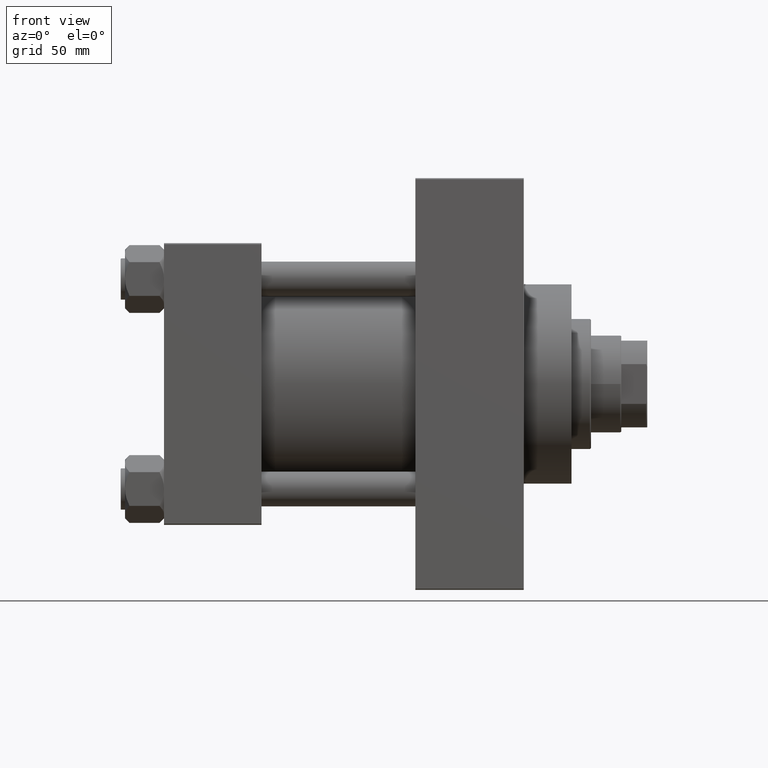
[diagram: clean part render]
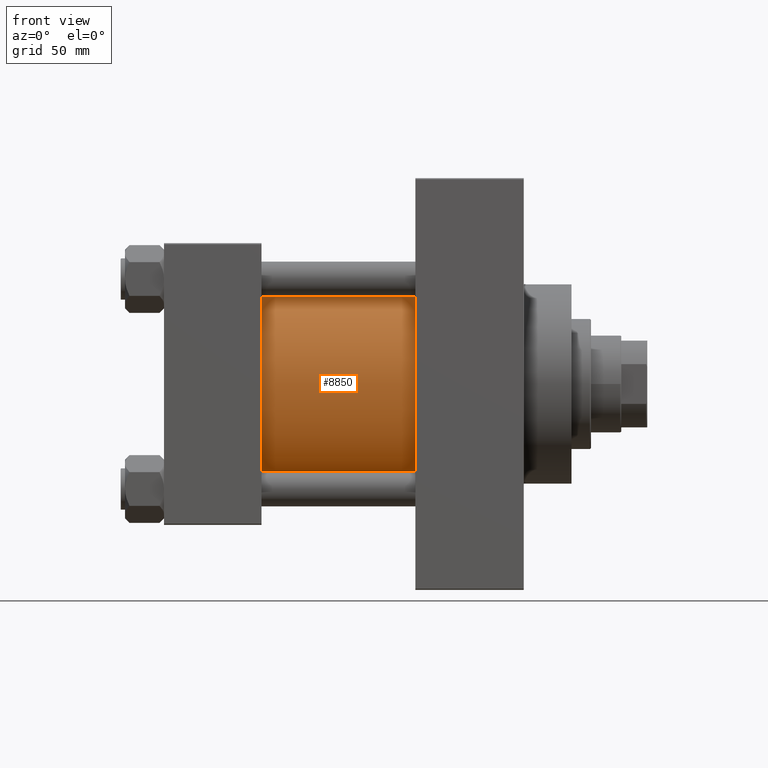
[diagram: same view with one face highlighted and labeled with its STEP entity id]
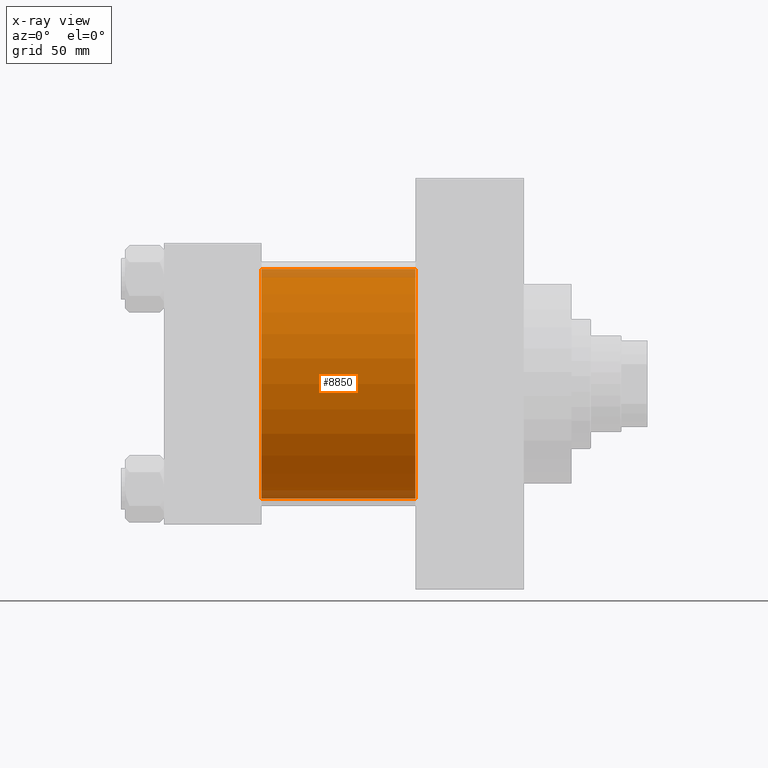
[diagram: x-ray of the same camera — body ghosted, the highlighted face saturated]
A machine part, front view. The second image highlights one B-rep face of the part: STEP entity #8850.
The next image is the same camera in x-ray: the body ghosted, the highlighted face saturated — about 7% of this face is hidden behind the body in this view.
In plain terms, the highlighted cylindrical surface (partial cylindrical patch) has radius 53 mm, axis along (-1, -0, -0).
Its self-contained STEP definition (entity closure, byte-faithful):
#870 = CARTESIAN_POINT ( 'NONE',  ( 115.9999999999999858, 3.888542821515762466E-15, -53.00000000000000711 ) ) ;
#2352 = CARTESIAN_POINT ( 'NONE',  ( 115.9999999999999858, -2.602085213965210642E-15, 53.00000000000000711 ) ) ;
#2384 = DIRECTION ( 'NONE',  ( 0.000000000000000000, 0.000000000000000000, 1.000000000000000000 ) ) ;
#2640 = DIRECTION ( 'NONE',  ( 1.000000000000000000, -0.000000000000000000, 0.000000000000000000 ) ) ;
#3180 = VECTOR ( 'NONE', #43661, 1000.000000000000000 ) ;
#4083 = FACE_OUTER_BOUND ( 'NONE', #40248, .T. ) ;
#6869 = CIRCLE ( 'NONE', #14073, 53.00000000000000711 ) ;
#6917 = CARTESIAN_POINT ( 'NONE',  ( 115.9999999999999858, -2.602085213965210642E-15, 0.000000000000000000 ) ) ;
#7868 = DIRECTION ( 'NONE',  ( 0.000000000000000000, 0.000000000000000000, 1.000000000000000000 ) ) ;
#8841 = CARTESIAN_POINT ( 'NONE',  ( 115.9999999999999858, -2.602085213965210642E-15, 53.00000000000000711 ) ) ;
#8850 = ADVANCED_FACE ( 'NONE', ( #4083 ), #10884, .T. ) ;
#9698 = CARTESIAN_POINT ( 'NONE',  ( 45.00000000000000000, -2.602085213965210642E-15, 53.00000000000000711 ) ) ;
#10884 = CYLINDRICAL_SURFACE ( 'NONE', #23412, 53.00000000000000711 ) ;
#11726 = ORIENTED_EDGE ( 'NONE', *, *, #17591, .T. ) ;
#13178 = LINE ( 'NONE', #870, #3180 ) ;
#14073 = AXIS2_PLACEMENT_3D ( 'NONE', #37121, #2640, #2384 ) ;
#15414 = CARTESIAN_POINT ( 'NONE',  ( 115.9999999999999858, -2.602085213965210642E-15, 0.000000000000000000 ) ) ;
#17591 = EDGE_CURVE ( 'NONE', #41509, #22019, #35774, .T. ) ;
#17991 = DIRECTION ( 'NONE',  ( 0.000000000000000000, 0.000000000000000000, -1.000000000000000000 ) ) ;
#20227 = CARTESIAN_POINT ( 'NONE',  ( 45.00000000000000000, 3.888542821515762466E-15, -53.00000000000000711 ) ) ;
#20295 = CARTESIAN_POINT ( 'NONE',  ( 115.9999999999999858, 3.888542821515762466E-15, -53.00000000000000711 ) ) ;
#22019 = VERTEX_POINT ( 'NONE', #9698 ) ;
#23412 = AXIS2_PLACEMENT_3D ( 'NONE', #15414, #49423, #7868 ) ;
#24041 = EDGE_CURVE ( 'NONE', #41509, #34166, #46216, .T. ) ;
#24440 = DIRECTION ( 'NONE',  ( -1.000000000000000000, -0.000000000000000000, -0.000000000000000000 ) ) ;
#25155 = EDGE_CURVE ( 'NONE', #22019, #43051, #6869, .T. ) ;
#25159 = VECTOR ( 'NONE', #24440, 1000.000000000000000 ) ;
#32484 = EDGE_CURVE ( 'NONE', #34166, #43051, #13178, .T. ) ;
#34166 = VERTEX_POINT ( 'NONE', #20295 ) ;
#35774 = LINE ( 'NONE', #8841, #25159 ) ;
#36117 = ORIENTED_EDGE ( 'NONE', *, *, #25155, .T. ) ;
#37121 = CARTESIAN_POINT ( 'NONE',  ( 45.00000000000000000, -2.602085213965210642E-15, 0.000000000000000000 ) ) ;
#40248 = EDGE_LOOP ( 'NONE', ( #45684, #42672, #11726, #36117 ) ) ;
#41509 = VERTEX_POINT ( 'NONE', #2352 ) ;
#42672 = ORIENTED_EDGE ( 'NONE', *, *, #24041, .F. ) ;
#43051 = VERTEX_POINT ( 'NONE', #20227 ) ;
#43661 = DIRECTION ( 'NONE',  ( -1.000000000000000000, -0.000000000000000000, -0.000000000000000000 ) ) ;
#44681 = DIRECTION ( 'NONE',  ( 1.000000000000000000, 0.000000000000000000, 0.000000000000000000 ) ) ;
#45684 = ORIENTED_EDGE ( 'NONE', *, *, #32484, .F. ) ;
#46216 = CIRCLE ( 'NONE', #47000, 53.00000000000000711 ) ;
#47000 = AXIS2_PLACEMENT_3D ( 'NONE', #6917, #44681, #17991 ) ;
#49423 = DIRECTION ( 'NONE',  ( -1.000000000000000000, -0.000000000000000000, -0.000000000000000000 ) ) ;